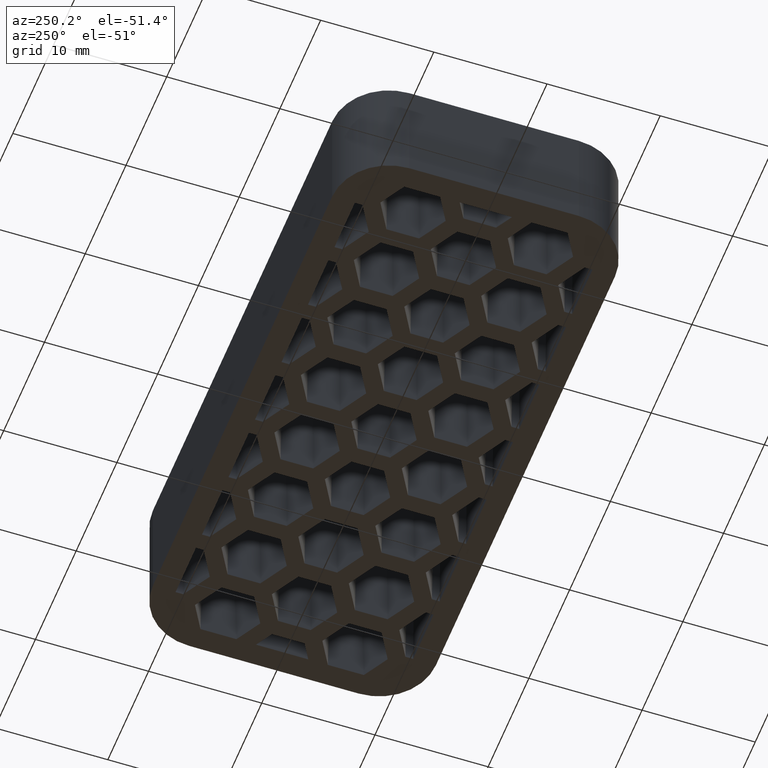
[diagram: clean part render]
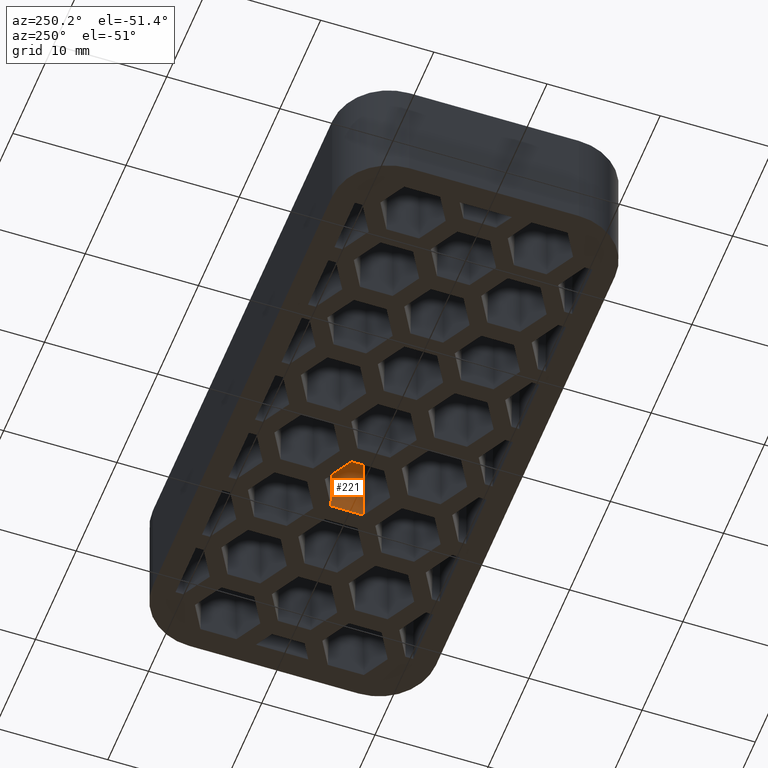
[diagram: same view with one face highlighted and labeled with its STEP entity id]
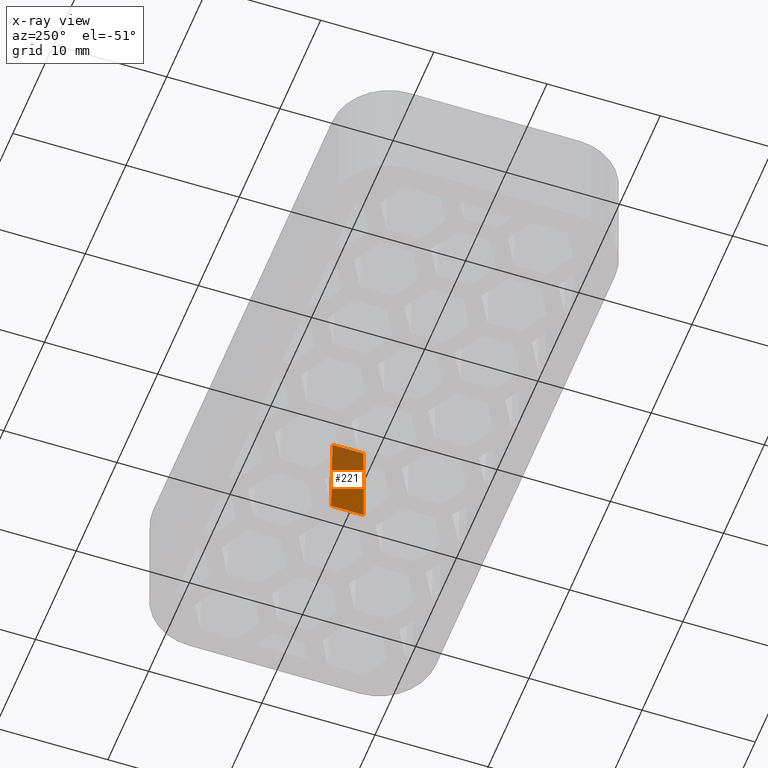
[diagram: x-ray of the same camera — body ghosted, the highlighted face saturated]
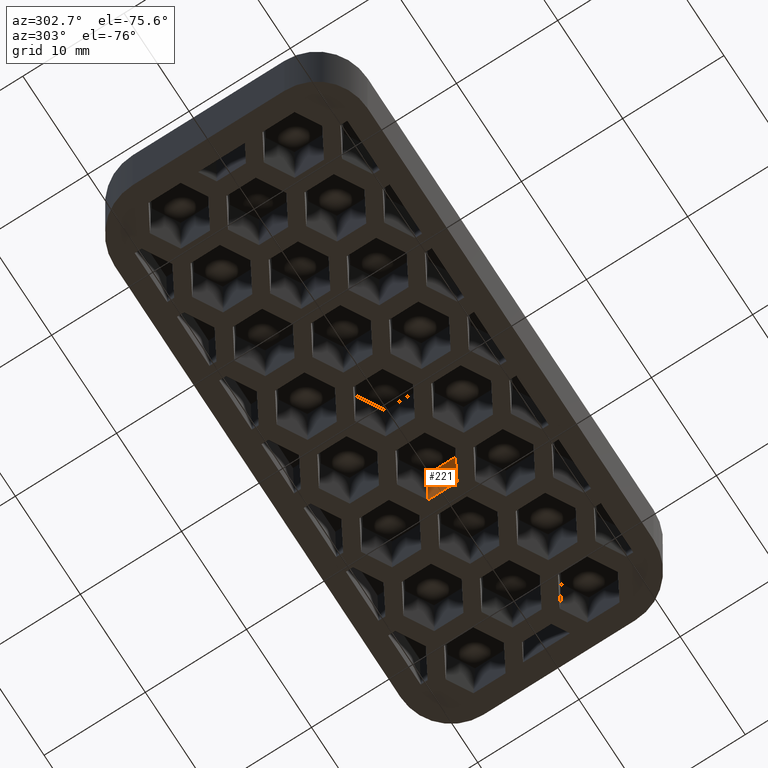
[diagram: same view with one face highlighted and labeled with its STEP entity id]
A machine part, auxiliary view. The second image highlights one B-rep face of the part: STEP entity #221.
The next image is the same camera in x-ray: the body ghosted, the highlighted face saturated — about 26% of this face is hidden behind the body in this view.
A second angle (auxiliary view) of the same face is appended — the face is thin or edge-on in the first view.
In plain terms, the highlighted planar face has unit normal (0.9998, 0, 0.0175).
Its self-contained STEP definition (entity closure, byte-faithful):
#221 = ADVANCED_FACE( '', ( #717 ), #718, .F. );
#717 = FACE_OUTER_BOUND( '', #1369, .T. );
#718 = PLANE( '', #1370 );
#1369 = EDGE_LOOP( '', ( #3024, #3025, #3026, #3027 ) );
#1370 = AXIS2_PLACEMENT_3D( '', #3028, #3029, #3030 );
#3024 = ORIENTED_EDGE( '', *, *, #4341, .T. );
#3025 = ORIENTED_EDGE( '', *, *, #4768, .F. );
#3026 = ORIENTED_EDGE( '', *, *, #4753, .F. );
#3027 = ORIENTED_EDGE( '', *, *, #4760, .T. );
#3028 = CARTESIAN_POINT( '', ( 9.00000000000000, -1.44337567297406, 8.83783510038342E-017 ) );
#3029 = DIRECTION( '', ( 0.999847695156391, 5.00592885917089E-016, 0.0174524064372835 ) );
#3030 = DIRECTION( '', ( -0.0174524064372835, 6.12209920171588E-017, 0.999847695156391 ) );
#4341 = EDGE_CURVE( '', #5328, #5329, #5330, .T. );
#4753 = EDGE_CURVE( '', #6008, #6009, #6010, .T. );
#4760 = EDGE_CURVE( '', #6008, #5328, #6021, .T. );
#4768 = EDGE_CURVE( '', #6009, #5329, #6035, .T. );
#5328 = VERTEX_POINT( '', #6818 );
#5329 = VERTEX_POINT( '', #6819 );
#5330 = LINE( '', #6820, #6821 );
#6008 = VERTEX_POINT( '', #7906 );
#6009 = VERTEX_POINT( '', #7907 );
#6010 = LINE( '', #7908, #7909 );
#6021 = LINE( '', #7926, #7927 );
#6035 = LINE( '', #7948, #7949 );
#6818 = CARTESIAN_POINT( '', ( 8.99999999999999, 1.44337567297407, -8.83783510038345E-017 ) );
#6819 = CARTESIAN_POINT( '', ( 9.00000000000000, -1.44337567297406, 8.83783510038345E-017 ) );
#6820 = CARTESIAN_POINT( '', ( 9.00000000000000, -1.44337567297406, 8.83783510038344E-017 ) );
#6821 = VECTOR( '', #8403, 1000.00000000000 );
#7906 = CARTESIAN_POINT( '', ( 8.86035948057425, 1.36275418149384, 8.00000000000000 ) );
#7907 = CARTESIAN_POINT( '', ( 8.86035948057425, -1.36275418149383, 8.00000000000000 ) );
#7908 = CARTESIAN_POINT( '', ( 8.86035948057425, -1.44337567297406, 8.00000000000000 ) );
#7909 = VECTOR( '', #8823, 1000.00000000000 );
#7926 = CARTESIAN_POINT( '', ( 8.99926399070756, 1.44295073781095, 0.0421659441232069 ) );
#7927 = VECTOR( '', #8830, 1000.00000000000 );
#7948 = CARTESIAN_POINT( '', ( 9.00000000000000, -1.44337567297406, 8.83783510038344E-017 ) );
#7949 = VECTOR( '', #8838, 1000.00000000000 );
#8403 = DIRECTION( '', ( 4.99600361081321E-016, -1.00000000000000, 6.12303176911189E-017 ) );
#8823 = DIRECTION( '', ( 4.99600361081321E-016, -1.00000000000000, 6.12303176911189E-017 ) );
#8830 = DIRECTION( '', ( 0.0174515205435363, 0.0100756400835789, -0.999796942337605 ) );
#8838 = DIRECTION( '', ( 0.0174515205435363, -0.0100756400835790, -0.999796942337605 ) );